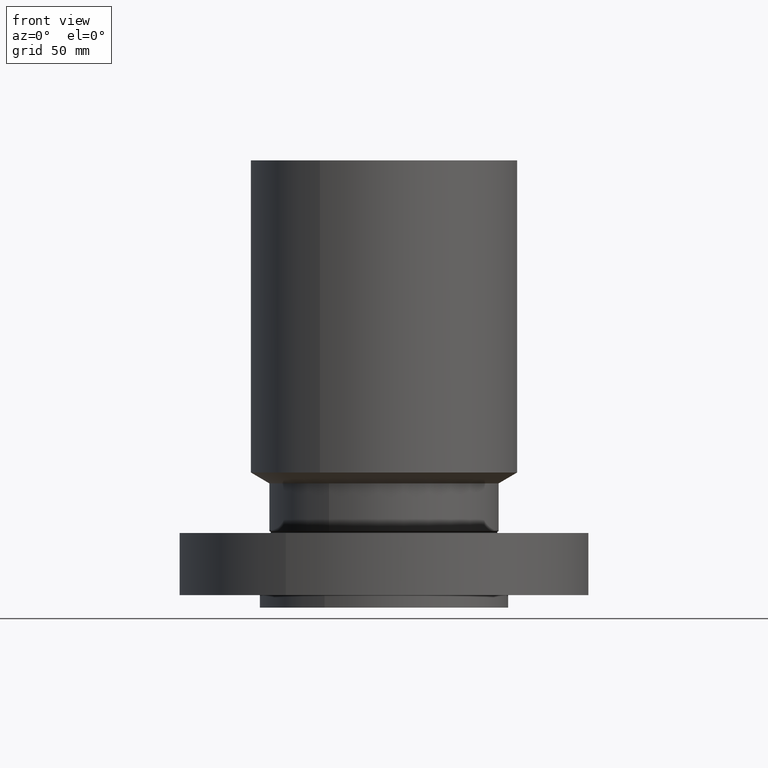
[diagram: clean part render]
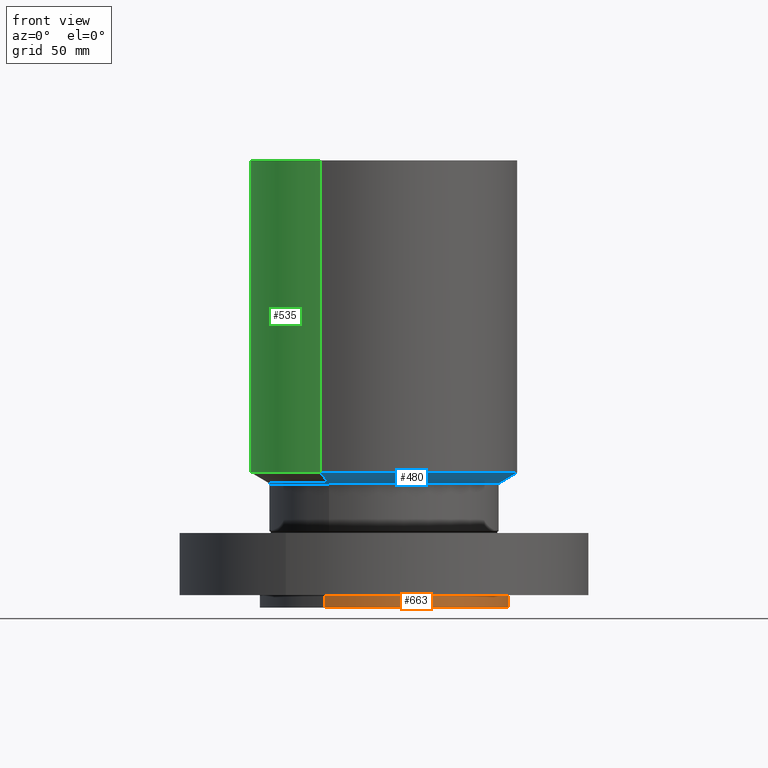
[diagram: same view with three faces highlighted in distinct colors, each labeled with its STEP entity id]
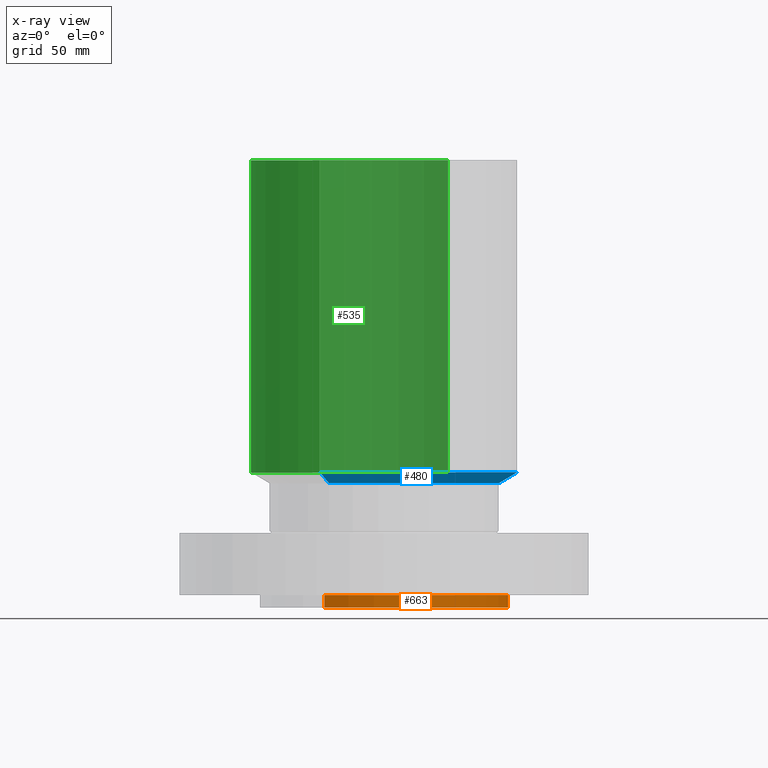
[diagram: x-ray of the same camera — body ghosted, the three highlighted faces saturated]
A machine part, front view with three faces highlighted in distinct colors.
The next image is the same camera in x-ray (body ghosted, the three faces saturated) — at least one of them is partly hidden behind the body in this view.
Their STEP definitions:

[orange] entity #663 — the highlighted cylindrical surface (partial cylindrical patch) has radius 63.5 mm, axis along (0, 0, -1).
#109=AXIS2_PLACEMENT_3D('Circle Axis2P3D',#107,#108,$) ;
#623=AXIS2_PLACEMENT_3D('Circle Axis2P3D',#621,#622,$) ;
#638=AXIS2_PLACEMENT_3D('Cylinder Axis2P3D',#635,#636,#637) ;
#107=CARTESIAN_POINT('Axis2P3D Location',(0.,0.,0.)) ;
#111=CARTESIAN_POINT('Vertex',(1.19856384652,2.19395640473,1.1189649382E-015)) ;
#113=CARTESIAN_POINT('Vertex',(-1.19856384652,-2.19395640473,1.1189649382E-015)) ;
#616=CARTESIAN_POINT('Vertex',(-1.19856384652,-2.19395640473,-0.250000000001)) ;
#618=CARTESIAN_POINT('Vertex',(1.19856384652,2.19395640473,-0.250000000001)) ;
#621=CARTESIAN_POINT('Axis2P3D Location',(0.,0.,-0.250000000001)) ;
#635=CARTESIAN_POINT('Axis2P3D Location',(0.,0.,4.25000000002)) ;
#640=CARTESIAN_POINT('Line Origine',(-1.19856384652,-2.19395640473,-0.125)) ;
#645=CARTESIAN_POINT('Line Origine',(1.19856384652,2.19395640473,-0.125)) ;
#108=DIRECTION('Axis2P3D Direction',(0.,0.,-0.0393700787402)) ;
#622=DIRECTION('Axis2P3D Direction',(0.,0.,-0.0393700787402)) ;
#636=DIRECTION('Axis2P3D Direction',(0.,0.,-0.0393700787402)) ;
#637=DIRECTION('Axis2P3D XDirection',(0.0188750212049,0.0345504945626,0.)) ;
#641=DIRECTION('Vector Direction',(0.,0.,-0.0393700787402)) ;
#646=DIRECTION('Vector Direction',(0.,0.,-0.0393700787402)) ;
#642=VECTOR('Line Direction',#641,0.0393700787402) ;
#647=VECTOR('Line Direction',#646,0.0393700787402) ;
#658=ORIENTED_EDGE('',*,*,#625,.F.) ;
#659=ORIENTED_EDGE('',*,*,#649,.T.) ;
#660=ORIENTED_EDGE('',*,*,#115,.T.) ;
#661=ORIENTED_EDGE('',*,*,#644,.F.) ;
#663=ADVANCED_FACE('PartBody',(#662),#639,.T.) ;
#110=CIRCLE('generated circle',#109,2.50000000001) ;
#624=CIRCLE('generated circle',#623,2.50000000001) ;
#639=CYLINDRICAL_SURFACE('generated cylinder',#638,2.50000000001) ;
#115=EDGE_CURVE('',#112,#114,#110,.T.) ;
#625=EDGE_CURVE('',#619,#617,#624,.T.) ;
#644=EDGE_CURVE('',#617,#114,#643,.F.) ;
#649=EDGE_CURVE('',#619,#112,#648,.F.) ;
#657=EDGE_LOOP('',(#658,#659,#660,#661)) ;
#662=FACE_OUTER_BOUND('',#657,.T.) ;
#643=LINE('Line',#640,#642) ;
#648=LINE('Line',#645,#647) ;
#112=VERTEX_POINT('',#111) ;
#114=VERTEX_POINT('',#113) ;
#617=VERTEX_POINT('',#616) ;
#619=VERTEX_POINT('',#618) ;

[blue] entity #480 — the highlighted conical surface has half-angle 60 deg.
#421=AXIS2_PLACEMENT_3D('Circle Axis2P3D',#419,#420,$) ;
#453=AXIS2_PLACEMENT_3D('Cone Axis2P3D',#450,#451,#452) ;
#464=AXIS2_PLACEMENT_3D('Circle Axis2P3D',#462,#463,$) ;
#416=CARTESIAN_POINT('Vertex',(1.10747299418,2.02721571797,2.25000000001)) ;
#419=CARTESIAN_POINT('Axis2P3D Location',(0.,0.,2.25000000001)) ;
#423=CARTESIAN_POINT('Vertex',(-1.10747299418,-2.02721571797,2.25000000001)) ;
#450=CARTESIAN_POINT('Axis2P3D Location',(0.,0.,2.25000000001)) ;
#455=CARTESIAN_POINT('Line Origine',(1.19856384652,2.19395640473,2.35969655116)) ;
#459=CARTESIAN_POINT('Vertex',(1.28965469885,2.36069709149,2.4693931023)) ;
#462=CARTESIAN_POINT('Axis2P3D Location',(0.,0.,2.4693931023)) ;
#466=CARTESIAN_POINT('Vertex',(-1.28965469885,-2.36069709149,2.4693931023)) ;
#469=CARTESIAN_POINT('Line Origine',(-1.19856384652,-2.19395640473,2.35969655116)) ;
#420=DIRECTION('Axis2P3D Direction',(0.,0.,-0.0393700787402)) ;
#451=DIRECTION('Axis2P3D Direction',(-0.,-0.,0.0393700787402)) ;
#452=DIRECTION('Axis2P3D XDirection',(0.0188750212049,0.0345504945626,0.)) ;
#456=DIRECTION('Vector Direction',(0.0163462478604,0.0299216060045,0.0196850393701)) ;
#463=DIRECTION('Axis2P3D Direction',(-0.,0.,0.0393700787402)) ;
#470=DIRECTION('Vector Direction',(-0.0163462478604,-0.0299216060045,0.0196850393701)) ;
#457=VECTOR('Line Direction',#456,0.0393700787402) ;
#471=VECTOR('Line Direction',#470,0.0393700787402) ;
#475=ORIENTED_EDGE('',*,*,#425,.F.) ;
#476=ORIENTED_EDGE('',*,*,#461,.T.) ;
#477=ORIENTED_EDGE('',*,*,#468,.T.) ;
#478=ORIENTED_EDGE('',*,*,#473,.F.) ;
#480=ADVANCED_FACE('PartBody',(#479),#454,.T.) ;
#422=CIRCLE('generated circle',#421,2.31000000001) ;
#465=CIRCLE('generated circle',#464,2.69000000001) ;
#454=CONICAL_SURFACE('Cone',#453,2.31000000001,1.0471975512) ;
#425=EDGE_CURVE('',#417,#424,#422,.T.) ;
#461=EDGE_CURVE('',#417,#460,#458,.T.) ;
#468=EDGE_CURVE('',#460,#467,#465,.F.) ;
#473=EDGE_CURVE('',#424,#467,#472,.T.) ;
#474=EDGE_LOOP('',(#475,#476,#477,#478)) ;
#479=FACE_OUTER_BOUND('',#474,.T.) ;
#458=LINE('Line',#455,#457) ;
#472=LINE('Line',#469,#471) ;
#417=VERTEX_POINT('',#416) ;
#424=VERTEX_POINT('',#423) ;
#460=VERTEX_POINT('',#459) ;
#467=VERTEX_POINT('',#466) ;

[green] entity #535 — the highlighted cylindrical surface (partial cylindrical patch) has radius 68.326 mm, axis along (0, 0, -1).
#483=AXIS2_PLACEMENT_3D('Circle Axis2P3D',#481,#482,$) ;
#496=AXIS2_PLACEMENT_3D('Cylinder Axis2P3D',#493,#494,#495) ;
#526=AXIS2_PLACEMENT_3D('Circle Axis2P3D',#524,#525,$) ;
#459=CARTESIAN_POINT('Vertex',(1.28965469885,2.36069709149,2.4693931023)) ;
#466=CARTESIAN_POINT('Vertex',(-1.28965469885,-2.36069709149,2.4693931023)) ;
#481=CARTESIAN_POINT('Axis2P3D Location',(0.,0.,2.4693931023)) ;
#493=CARTESIAN_POINT('Axis2P3D Location',(0.,0.,4.25000000002)) ;
#498=CARTESIAN_POINT('Line Origine',(1.28965469885,2.36069709149,5.60969655117)) ;
#502=CARTESIAN_POINT('Vertex',(1.28965469885,2.36069709149,8.75000000003)) ;
#509=CARTESIAN_POINT('Vertex',(-1.28965469885,-2.36069709149,8.75000000003)) ;
#512=CARTESIAN_POINT('Line Origine',(-1.28965469885,-2.36069709149,5.60969655117)) ;
#524=CARTESIAN_POINT('Axis2P3D Location',(0.,0.,8.75000000003)) ;
#482=DIRECTION('Axis2P3D Direction',(-0.,0.,0.0393700787402)) ;
#494=DIRECTION('Axis2P3D Direction',(0.,0.,-0.0393700787402)) ;
#495=DIRECTION('Axis2P3D XDirection',(-0.0188750212049,-0.0345504945626,0.)) ;
#499=DIRECTION('Vector Direction',(0.,0.,-0.0393700787402)) ;
#513=DIRECTION('Vector Direction',(0.,0.,-0.0393700787402)) ;
#525=DIRECTION('Axis2P3D Direction',(0.,0.,-0.0393700787402)) ;
#500=VECTOR('Line Direction',#499,0.0393700787402) ;
#514=VECTOR('Line Direction',#513,0.0393700787402) ;
#530=ORIENTED_EDGE('',*,*,#485,.F.) ;
#531=ORIENTED_EDGE('',*,*,#516,.T.) ;
#532=ORIENTED_EDGE('',*,*,#528,.T.) ;
#533=ORIENTED_EDGE('',*,*,#504,.F.) ;
#535=ADVANCED_FACE('PartBody',(#534),#497,.T.) ;
#484=CIRCLE('generated circle',#483,2.69000000001) ;
#527=CIRCLE('generated circle',#526,2.69000000001) ;
#497=CYLINDRICAL_SURFACE('generated cylinder',#496,2.69000000001) ;
#485=EDGE_CURVE('',#467,#460,#484,.F.) ;
#504=EDGE_CURVE('',#460,#503,#501,.F.) ;
#516=EDGE_CURVE('',#467,#510,#515,.F.) ;
#528=EDGE_CURVE('',#510,#503,#527,.T.) ;
#529=EDGE_LOOP('',(#530,#531,#532,#533)) ;
#534=FACE_OUTER_BOUND('',#529,.T.) ;
#501=LINE('Line',#498,#500) ;
#515=LINE('Line',#512,#514) ;
#460=VERTEX_POINT('',#459) ;
#467=VERTEX_POINT('',#466) ;
#503=VERTEX_POINT('',#502) ;
#510=VERTEX_POINT('',#509) ;